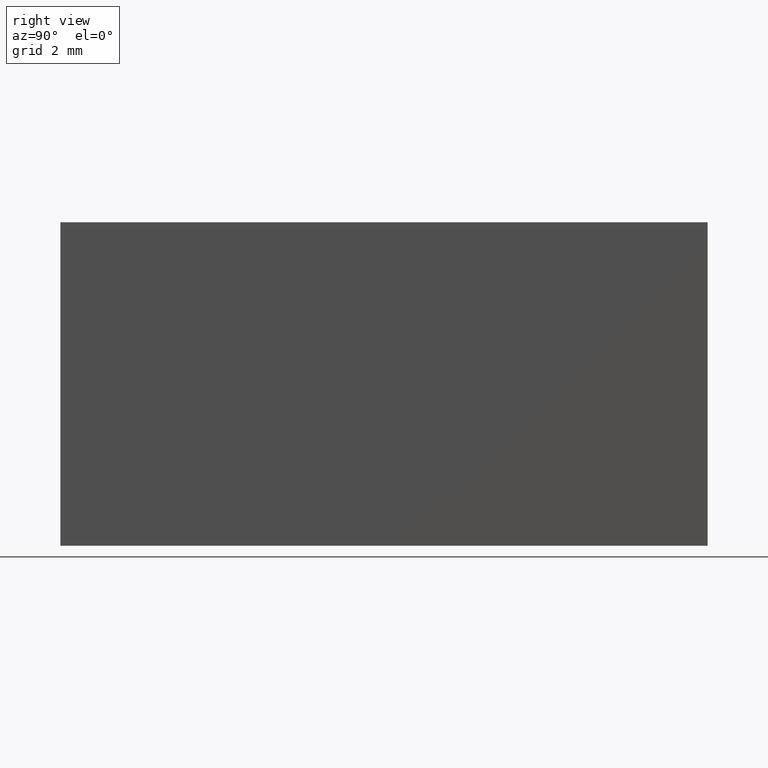
[diagram: clean part render]
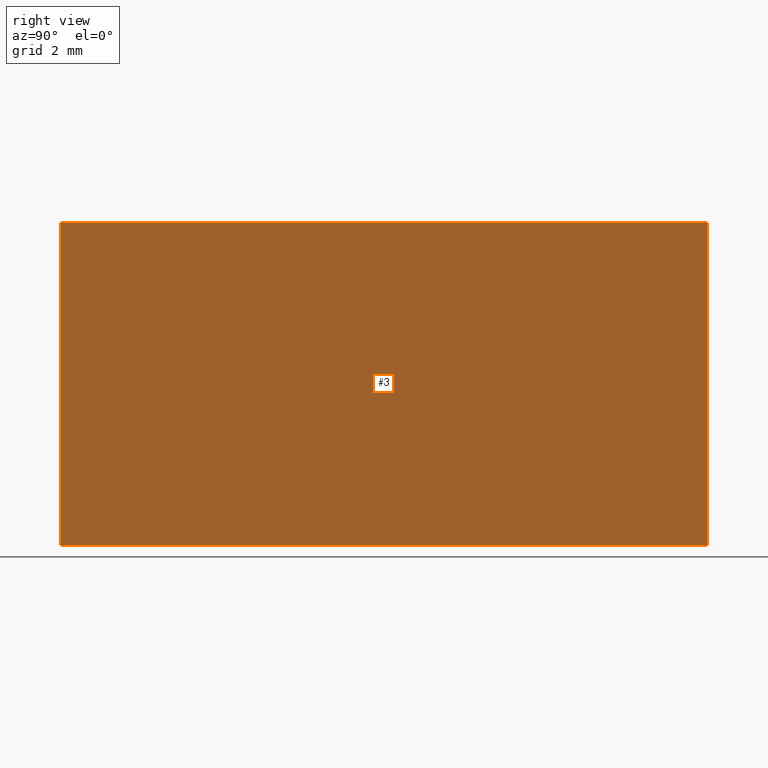
[diagram: same view with one face highlighted and labeled with its STEP entity id]
A machine part, right view. The second image highlights one B-rep face of the part: STEP entity #3.
In plain terms, the highlighted planar face has unit normal (-1, 0, 0).
Its self-contained STEP definition (entity closure, byte-faithful):
#3 = ADVANCED_FACE ( 'NONE', ( #134 ), #191, .F. ) ;
#12 = ORIENTED_EDGE ( 'NONE', *, *, #164, .F. ) ;
#17 = EDGE_CURVE ( 'NONE', #127, #121, #94, .T. ) ;
#18 = CARTESIAN_POINT ( 'NONE',  ( -2.694795665148737900, 20.00000000000000000, -5.000000000000000000 ) ) ;
#27 = VECTOR ( 'NONE', #29, 1000.000000000000000 ) ;
#28 = CARTESIAN_POINT ( 'NONE',  ( -2.694795665148737900, 20.00000000000000000, -5.000000000000000000 ) ) ;
#29 = DIRECTION ( 'NONE',  ( -3.469446951953614200E-016, -0.0000000000000000000, -1.000000000000000000 ) ) ;
#30 = CARTESIAN_POINT ( 'NONE',  ( -2.694795665148734400, 20.00000000000000000, 5.000000000000000000 ) ) ;
#31 = DIRECTION ( 'NONE',  ( -0.0000000000000000000, -1.000000000000000000, -0.0000000000000000000 ) ) ;
#34 = VECTOR ( 'NONE', #78, 1000.000000000000000 ) ;
#36 = CARTESIAN_POINT ( 'NONE',  ( -2.694795665148734400, 20.00000000000000000, 5.000000000000000000 ) ) ;
#37 = VERTEX_POINT ( 'NONE', #67 ) ;
#46 = DIRECTION ( 'NONE',  ( 3.469446951953614200E-016, 0.0000000000000000000, 1.000000000000000000 ) ) ;
#51 = EDGE_CURVE ( 'NONE', #37, #149, #169, .T. ) ;
#53 = CARTESIAN_POINT ( 'NONE',  ( -2.694795665148737900, 0.0000000000000000000, -5.000000000000000000 ) ) ;
#67 = CARTESIAN_POINT ( 'NONE',  ( -2.694795665148737900, 20.00000000000000000, -5.000000000000000000 ) ) ;
#78 = DIRECTION ( 'NONE',  ( -0.0000000000000000000, -1.000000000000000000, -0.0000000000000000000 ) ) ;
#86 = ORIENTED_EDGE ( 'NONE', *, *, #17, .T. ) ;
#94 = LINE ( 'NONE', #36, #34 ) ;
#103 = EDGE_LOOP ( 'NONE', ( #193, #111, #12, #86 ) ) ;
#104 = VECTOR ( 'NONE', #31, 1000.000000000000000 ) ;
#108 = CARTESIAN_POINT ( 'NONE',  ( -2.694795665148734400, 0.0000000000000000000, 5.000000000000000000 ) ) ;
#110 = AXIS2_PLACEMENT_3D ( 'NONE', #28, #145, #46 ) ;
#111 = ORIENTED_EDGE ( 'NONE', *, *, #51, .F. ) ;
#121 = VERTEX_POINT ( 'NONE', #108 ) ;
#125 = LINE ( 'NONE', #18, #27 ) ;
#127 = VERTEX_POINT ( 'NONE', #30 ) ;
#131 = LINE ( 'NONE', #53, #137 ) ;
#134 = FACE_OUTER_BOUND ( 'NONE', #103, .T. ) ;
#137 = VECTOR ( 'NONE', #152, 1000.000000000000000 ) ;
#145 = DIRECTION ( 'NONE',  ( -1.000000000000000000, 0.0000000000000000000, 3.469446951953614200E-016 ) ) ;
#149 = VERTEX_POINT ( 'NONE', #167 ) ;
#152 = DIRECTION ( 'NONE',  ( -3.469446951953614200E-016, -0.0000000000000000000, -1.000000000000000000 ) ) ;
#164 = EDGE_CURVE ( 'NONE', #127, #37, #125, .T. ) ;
#167 = CARTESIAN_POINT ( 'NONE',  ( -2.694795665148737900, 0.0000000000000000000, -5.000000000000000000 ) ) ;
#169 = LINE ( 'NONE', #170, #104 ) ;
#170 = CARTESIAN_POINT ( 'NONE',  ( -2.694795665148737900, 20.00000000000000000, -5.000000000000000000 ) ) ;
#191 = PLANE ( 'NONE',  #110 ) ;
#193 = ORIENTED_EDGE ( 'NONE', *, *, #195, .T. ) ;
#195 = EDGE_CURVE ( 'NONE', #121, #149, #131, .T. ) ;